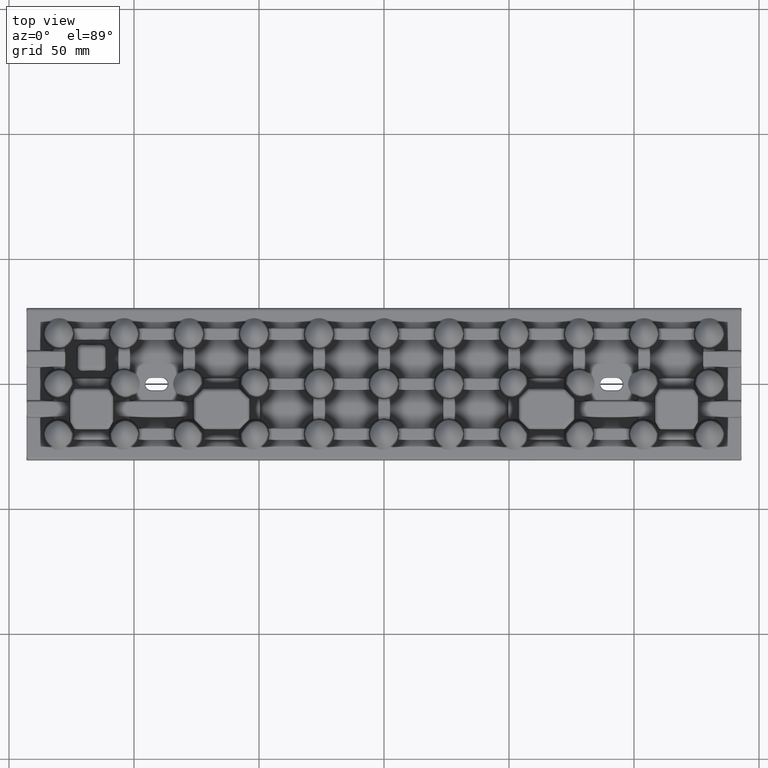
[diagram: clean part render]
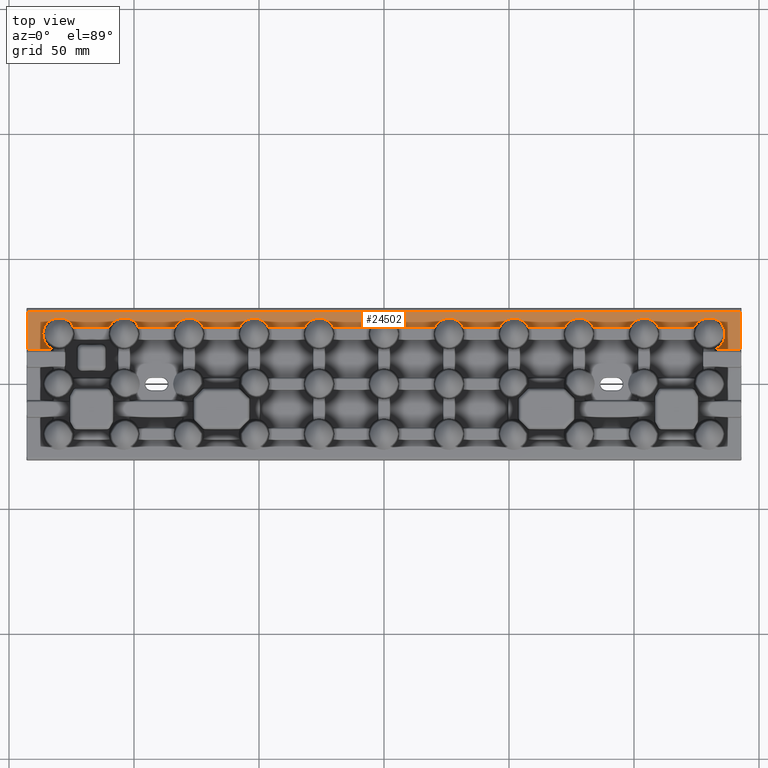
[diagram: same view with one face highlighted and labeled with its STEP entity id]
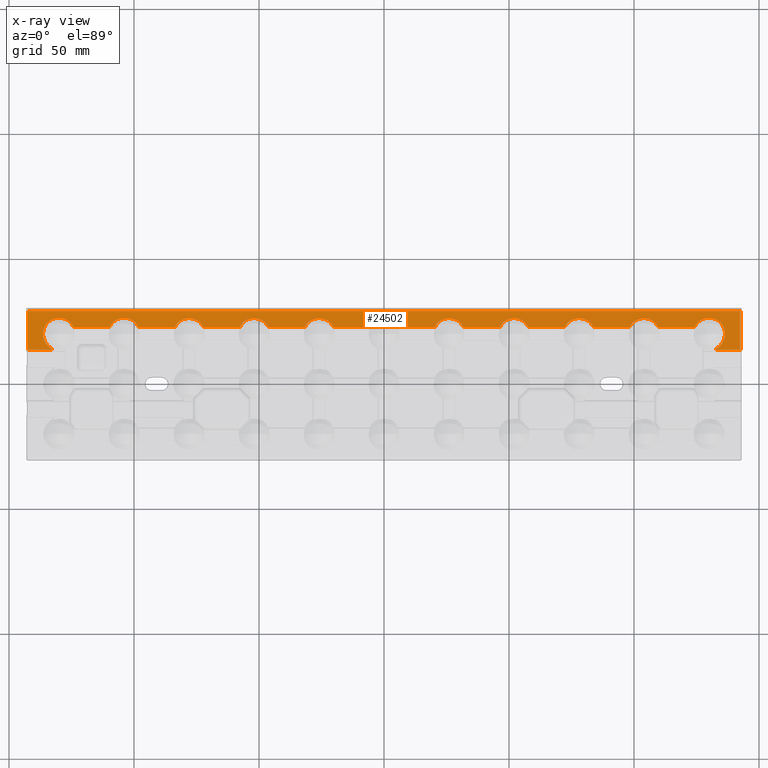
[diagram: x-ray of the same camera — body ghosted, the highlighted face saturated]
A machine part, top view. The second image highlights one B-rep face of the part: STEP entity #24502.
The next image is the same camera in x-ray: the body ghosted, the highlighted face saturated — about 0% of this face is hidden behind the body in this view.
In plain terms, the highlighted planar face has unit normal (-0, 0, 1).
Its self-contained STEP definition (entity closure, byte-faithful):
#887 = DIRECTION ( 'NONE',  ( -0.0000000000000000000, 1.000000000000000000, -0.0000000000000000000 ) ) ;
#1106 = CARTESIAN_POINT ( 'NONE',  ( 54.89580223656205500, 25.72966805994285300, 2.000000000000000400 ) ) ;
#1329 = CARTESIAN_POINT ( 'NONE',  ( 126.9370072906878300, 25.74524849004776400, 2.000000000000002700 ) ) ;
#1546 = CARTESIAN_POINT ( 'NONE',  ( -77.40202494203296600, 26.34292466919690800, 2.000000000000007500 ) ) ;
#1559 = CARTESIAN_POINT ( 'NONE',  ( 48.10937087448136400, 25.08791192409510300, 1.999999999999990500 ) ) ;
#1776 = CARTESIAN_POINT ( 'NONE',  ( 132.4560468600722300, 26.02111659440521400, 2.000000000000582200 ) ) ;
#2008 = CARTESIAN_POINT ( 'NONE',  ( -82.94023786564170600, 24.03016675287940600, 1.999999999999998700 ) ) ;
#2254 = CARTESIAN_POINT ( 'NONE',  ( 136.3571855220607500, 20.93196077515543500, 1.999999999999992200 ) ) ;
#2716 = ORIENTED_EDGE ( 'NONE', *, *, #77481, .T. ) ;
#2726 = CARTESIAN_POINT ( 'NONE',  ( 134.8038073728026200, 15.63519716726078500, 2.000000000000001800 ) ) ;
#2779 = CARTESIAN_POINT ( 'NONE',  ( -46.31408250283077200, 22.74142219370213900, 2.000000000000000000 ) ) ;
#3237 = CARTESIAN_POINT ( 'NONE',  ( -50.81249629584369400, 26.26920953247134300, 1.999999999999999100 ) ) ;
#3456 = CARTESIAN_POINT ( 'NONE',  ( -23.65318109744439600, 25.96090301202868400, 2.000000000000001300 ) ) ;
#3736 = CARTESIAN_POINT ( 'NONE',  ( -56.55612884159967300, 24.48408273836402300, 1.999999999999999100 ) ) ;
#3935 = CARTESIAN_POINT ( 'NONE',  ( -30.34308451482867500, 24.69897988287919300, 1.999999999999991300 ) ) ;
#4334 = CARTESIAN_POINT ( 'NONE',  ( 30.35088839336700400, 24.69138805408460500, 2.000000000000001300 ) ) ;
#4712 = DIRECTION ( 'NONE',  ( 1.000000000000000000, 0.0000000000000000000, 0.0000000000000000000 ) ) ;
#4767 = CARTESIAN_POINT ( 'NONE',  ( 23.11361756186815000, 25.70828810833424400, 2.000000000000020900 ) ) ;
#4971 = CARTESIAN_POINT ( 'NONE',  ( 83.68591749716920000, 22.74142219370215700, 2.000000000000000000 ) ) ;
#5161 = B_SPLINE_CURVE_WITH_KNOTS ( 'NONE', 3,
 ( #87103, #119175, #87551, #22966, #98347, #33831, #109207, #44656, #120072, #55461, #131050, #66271, #1546, #77156, #12493, #88008, #23425, #98822, #34284, #109654, #45115, #120561, #55919, #131491, #66748, #2008, #77600, #12962, #88488, #23883 ),
 .UNSPECIFIED., .F., .F.,
 ( 4, 2, 2, 2, 2, 2, 2, 2, 2, 2, 2, 2, 2, 2, 4 ),
 ( 0.01146105144502494200, 0.01234856672288493600, 0.01323608200074493000, 0.01412359727860492400, 0.01501111255646491900, 0.01678614311218490700, 0.01856117366790489500, 0.01944868894576486800, 0.02033620422362484100, 0.02122371950148481400, 0.02211123477934479100, 0.02299875005720476000, 0.02388626533506473700, 0.02477378061292470600, 0.02566129589078468300 ),
 .UNSPECIFIED. ) ;
#5215 = VECTOR ( 'NONE', #7709, 1000.000000000000000 ) ;
#5375 = ORIENTED_EDGE ( 'NONE', *, *, #87229, .F. ) ;
#5437 = CARTESIAN_POINT ( 'NONE',  ( 78.59797505796694800, 26.34292466919692500, 2.000000000000007500 ) ) ;
#5559 = CARTESIAN_POINT ( 'NONE',  ( 4.350888393367010400, 24.69138805408459800, 2.000000000000001300 ) ) ;
#5902 = VECTOR ( 'NONE', #136437, 1000.000000000000000 ) ;
#5919 = CARTESIAN_POINT ( 'NONE',  ( 73.05976213435825200, 24.03016675287936000, 1.999999999999999600 ) ) ;
#5976 = DIRECTION ( 'NONE',  ( 1.000000000000000000, -3.844641663027053000E-016, 0.0000000000000000000 ) ) ;
#6028 = CARTESIAN_POINT ( 'NONE',  ( -2.886382438131816800, 25.70828810833426600, 2.000000000000021800 ) ) ;
#6143 = CARTESIAN_POINT ( 'NONE',  ( -107.7316135890797700, 25.34129456702345700, 2.000000000000021300 ) ) ;
#6217 = CARTESIAN_POINT ( 'NONE',  ( -5.685918381136276300, 22.74142219370212500, 2.000000000000000000 ) ) ;
#6617 = CARTESIAN_POINT ( 'NONE',  ( -100.2648923355076700, 25.33864318734784100, 2.000000000000000000 ) ) ;
#7104 = CARTESIAN_POINT ( 'NONE',  ( 108.9442605898524200, 24.02494622371219900, 2.000000000000000400 ) ) ;
#7583 = CARTESIAN_POINT ( 'NONE',  ( 101.9486907499038800, 26.03961674755554500, 2.000000000000376100 ) ) ;
#7709 = DIRECTION ( 'NONE',  ( 0.0000000000000000000, -1.000000000000000000, 0.0000000000000000000 ) ) ;
#8099 = CARTESIAN_POINT ( 'NONE',  ( -134.9688220959078800, 15.83627662067565300, 2.000000000000036900 ) ) ;
#8363 = CARTESIAN_POINT ( 'NONE',  ( -8.743261924239526700E-015, 22.74142219370212500, 2.000000000000000000 ) ) ;
#8375 = B_SPLINE_CURVE_WITH_KNOTS ( 'NONE', 3,
 ( #2779, #56689, #24625, #99993, #35495, #110875, #46343, #121781, #57139, #132753, #67942, #3237, #78807, #14197, #89694, #25088, #100482, #35980, #111342, #46812, #122270, #57605, #133205, #68426, #3736, #79238, #14661, #90163, #25549, #100948 ),
 .UNSPECIFIED., .F., .F.,
 ( 4, 2, 2, 2, 2, 2, 2, 2, 2, 2, 2, 2, 2, 2, 4 ),
 ( 0.01146105144502511700, 0.01234856672288517500, 0.01323608200074523300, 0.01412359727860529200, 0.01501111255646535100, 0.01678614311218544500, 0.01856117366790553700, 0.01944868894576559600, 0.02033620422362565300, 0.02122371950148570900, 0.02211123477934576200, 0.02299875005720582200, 0.02388626533506587800, 0.02477378061292593400, 0.02566129589078599100 ),
 .UNSPECIFIED. ) ;
#8567 = CARTESIAN_POINT ( 'NONE',  ( -136.4004426060456600, 20.69303316226777800, 2.000000000000042200 ) ) ;
#8897 = VERTEX_POINT ( 'NONE', #18110 ) ;
#9045 = CARTESIAN_POINT ( 'NONE',  ( -133.5888221226770700, 25.43574078452050800, 1.999999999999996200 ) ) ;
#9277 = VECTOR ( 'NONE', #75955, 1000.000000000000000 ) ;
#9534 = CARTESIAN_POINT ( 'NONE',  ( -127.1614140553780000, 25.85630829189935300, 2.000000000000001800 ) ) ;
#9707 = CARTESIAN_POINT ( 'NONE',  ( 142.4984859507544300, 13.77131854326629700, 2.000000000000000000 ) ) ;
#10357 = ORIENTED_EDGE ( 'NONE', *, *, #88840, .T. ) ;
#10787 = VERTEX_POINT ( 'NONE', #48681 ) ;
#10975 = DIRECTION ( 'NONE',  ( -1.000000000000000000, 0.0000000000000000000, -0.0000000000000000000 ) ) ;
#11187 = CARTESIAN_POINT ( 'NONE',  ( -142.4984859507544300, 29.17765049216839300, 2.000000000000000000 ) ) ;
#11457 = EDGE_CURVE ( 'NONE', #135893, #94894, #5161, .T. ) ;
#12039 = CARTESIAN_POINT ( 'NONE',  ( 53.18750370415638400, 26.26920953247132600, 2.000000000000000400 ) ) ;
#12266 = CARTESIAN_POINT ( 'NONE',  ( 127.6433081856375200, 26.05903956711943800, 1.999999999999999600 ) ) ;
#12493 = CARTESIAN_POINT ( 'NONE',  ( -78.59921765466381800, 26.32369884161497000, 2.000000000000000400 ) ) ;
#12508 = CARTESIAN_POINT ( 'NONE',  ( 47.44387115840034100, 24.48408273836409400, 1.999999999999999100 ) ) ;
#12679 = EDGE_CURVE ( 'NONE', #59321, #71953, #62313, .T. ) ;
#12735 = CARTESIAN_POINT ( 'NONE',  ( 133.1564910287879100, 25.69533138555745900, 2.000000000000004400 ) ) ;
#12962 = CARTESIAN_POINT ( 'NONE',  ( -83.42663582402389000, 23.28237074835563900, 2.000000000000000000 ) ) ;
#13185 = CARTESIAN_POINT ( 'NONE',  ( 136.4543630076603900, 20.28945278893971200, 2.000000000000033800 ) ) ;
#13640 = CARTESIAN_POINT ( 'NONE',  ( 134.2632666899523600, 15.08384263854769900, 2.000000000000008900 ) ) ;
#14197 = CARTESIAN_POINT ( 'NONE',  ( -52.29989643202071600, 26.34284743751708600, 2.000000000000007500 ) ) ;
#14416 = CARTESIAN_POINT ( 'NONE',  ( -25.40202494203300500, 26.34292466919688600, 2.000000000000006700 ) ) ;
#14661 = CARTESIAN_POINT ( 'NONE',  ( -57.11388305340173600, 23.78948424218560100, 2.000000000000000000 ) ) ;
#14870 = CARTESIAN_POINT ( 'NONE',  ( -30.94023786564174800, 24.03016675287936700, 1.999999999999999600 ) ) ;
#15225 = CARTESIAN_POINT ( 'NONE',  ( 29.65900157376771400, 25.25750687982492000, 2.000000000000000900 ) ) ;
#15687 = CARTESIAN_POINT ( 'NONE',  ( 22.34826929203328700, 25.26228968515621500, 1.999999999999998700 ) ) ;
#16056 = EDGE_CURVE ( 'NONE', #89151, #10787, #21688, .T. ) ;
#16312 = CARTESIAN_POINT ( 'NONE',  ( -83.68591838113627500, 22.74142219370215300, 2.000000000000000000 ) ) ;
#16358 = CARTESIAN_POINT ( 'NONE',  ( 77.40078234533609700, 26.32369884161497000, 2.000000000000000900 ) ) ;
#16470 = CARTESIAN_POINT ( 'NONE',  ( 3.659001573767734600, 25.25750687982491600, 2.000000000000000400 ) ) ;
#16811 = CARTESIAN_POINT ( 'NONE',  ( 72.57336417597609600, 23.28237074835564600, 2.000000000000000000 ) ) ;
#16916 = CARTESIAN_POINT ( 'NONE',  ( -3.651730707966690700, 25.26228968515624000, 1.999999999999999100 ) ) ;
#17035 = CARTESIAN_POINT ( 'NONE',  ( -106.9451692743110000, 25.80729167703339000, 2.000000000000000400 ) ) ;
#17527 = CARTESIAN_POINT ( 'NONE',  ( -99.55769351884465800, 24.75262746778319600, 2.000000000000000000 ) ) ;
#18005 = CARTESIAN_POINT ( 'NONE',  ( 108.3508883933669200, 24.69138805408460200, 1.999999999999999100 ) ) ;
#18110 = CARTESIAN_POINT ( 'NONE',  ( 142.4984859507544300, 29.17765049216839300, 2.000000000000000000 ) ) ;
#18475 = CARTESIAN_POINT ( 'NONE',  ( 101.1136175618681200, 25.70828810833425100, 2.000000000000020400 ) ) ;
#18479 = CARTESIAN_POINT ( 'NONE',  ( 83.68591749716920000, 22.74142219370215700, 2.000000000000000000 ) ) ;
#18752 = LINE ( 'NONE', #138430, #76154 ) ;
#18766 = ORIENTED_EDGE ( 'NONE', *, *, #72944, .T. ) ;
#19022 = CARTESIAN_POINT ( 'NONE',  ( -135.4108736732432000, 16.47871832660653300, 2.000000000000005800 ) ) ;
#19500 = LINE ( 'NONE', #65140, #9277 ) ;
#19514 = CARTESIAN_POINT ( 'NONE',  ( -136.2434718376038600, 21.45292745694797200, 2.000000000000017800 ) ) ;
#19973 = CARTESIAN_POINT ( 'NONE',  ( -132.4447679283120500, 26.04204510480128200, 1.999999999999997800 ) ) ;
#20427 = ORIENTED_EDGE ( 'NONE', *, *, #114862, .T. ) ;
#20426 = CARTESIAN_POINT ( 'NONE',  ( -126.4852440884928200, 25.48385695646168300, 2.000000000000200700 ) ) ;
#20537 = DIRECTION ( 'NONE',  ( -0.0000000000000000000, 1.000000000000000000, -0.0000000000000000000 ) ) ;
#20816 = ORIENTED_EDGE ( 'NONE', *, *, #16056, .T. ) ;
#21688 = LINE ( 'NONE', #8363, #104308 ) ;
#21829 = CARTESIAN_POINT ( 'NONE',  ( 132.7414221937016500, 13.77131854326629700, 2.000000000000000000 ) ) ;
#21849 = LINE ( 'NONE', #60481, #47160 ) ;
#22100 = CARTESIAN_POINT ( 'NONE',  ( 124.1933031999768500, 22.74142219370217100, 2.000000000000000000 ) ) ;
#22249 = CARTESIAN_POINT ( 'NONE',  ( 124.4021928249320600, 23.21914348379841500, 2.000000000000000000 ) ) ;
#22500 = CARTESIAN_POINT ( 'NONE',  ( 57.68591749716920700, 22.74142219370214600, 2.000000000000000000 ) ) ;
#22966 = CARTESIAN_POINT ( 'NONE',  ( -72.87935984118216500, 23.77949261962840700, 1.999999999999999600 ) ) ;
#22978 = CARTESIAN_POINT ( 'NONE',  ( 51.70010356797940400, 26.34284743751707900, 2.000000000000007500 ) ) ;
#23188 = CARTESIAN_POINT ( 'NONE',  ( 128.3896361200185900, 26.28622938213729700, 1.999999999999998200 ) ) ;
#23425 = CARTESIAN_POINT ( 'NONE',  ( -79.47797127924188500, 26.19184143120081400, 2.000000000000376100 ) ) ;
#23438 = CARTESIAN_POINT ( 'NONE',  ( 46.88611694659826400, 23.78948424218561200, 2.000000000000000400 ) ) ;
#23654 = CARTESIAN_POINT ( 'NONE',  ( 133.8068336764966100, 25.28476824205488800, 2.000000000000020900 ) ) ;
#23883 = CARTESIAN_POINT ( 'NONE',  ( -83.68591838113627500, 22.74142219370215300, 2.000000000000000000 ) ) ;
#24104 = CARTESIAN_POINT ( 'NONE',  ( 136.4729777846312400, 19.90042531852348500, 1.999999999999703800 ) ) ;
#24502 = ADVANCED_FACE ( 'NONE', ( #122005 ), #134213, .T. ) ;
#24579 = CARTESIAN_POINT ( 'NONE',  ( 133.6524553784973400, 14.60666705602079300, 1.999999999999995300 ) ) ;
#24625 = CARTESIAN_POINT ( 'NONE',  ( -46.56883134949654100, 23.27401291800962100, 1.999999999999999100 ) ) ;
#24897 = CARTESIAN_POINT ( 'NONE',  ( -109.8066968000231500, 22.74142219370216400, 2.000000000000000000 ) ) ;
#25088 = CARTESIAN_POINT ( 'NONE',  ( -53.18745140174165400, 26.24813518024992100, 2.000000000000000400 ) ) ;
#25292 = CARTESIAN_POINT ( 'NONE',  ( -26.59921765466388500, 26.32369884161497700, 2.000000000000001300 ) ) ;
#25549 = CARTESIAN_POINT ( 'NONE',  ( -57.56605016654666700, 23.01410366585238500, 2.000000000000000900 ) ) ;
#25763 = CARTESIAN_POINT ( 'NONE',  ( -31.42663582402390400, 23.28237074835563900, 2.000000000000000000 ) ) ;
#26159 = CARTESIAN_POINT ( 'NONE',  ( 28.34681890255554000, 25.96090301202870200, 2.000000000000000900 ) ) ;
#26285 = VERTEX_POINT ( 'NONE', #68795 ) ;
#26605 = CARTESIAN_POINT ( 'NONE',  ( 21.65691548517130000, 24.69897988287915400, 1.999999999999993600 ) ) ;
#26814 = CARTESIAN_POINT ( 'NONE',  ( 83.12064015881782100, 23.77949261962847400, 2.000000000000000000 ) ) ;
#27271 = CARTESIAN_POINT ( 'NONE',  ( 76.52202872075803000, 26.19184143120079300, 2.000000000000375700 ) ) ;
#27314 = VECTOR ( 'NONE', #132351, 1000.000000000000000 ) ;
#27380 = CARTESIAN_POINT ( 'NONE',  ( 2.346818902555559000, 25.96090301202869500, 1.999999999999999100 ) ) ;
#27666 = VERTEX_POINT ( 'NONE', #48972 ) ;
#27754 = CARTESIAN_POINT ( 'NONE',  ( 72.31408161886368200, 22.74142219370215300, 2.000000000000000000 ) ) ;
#27871 = CARTESIAN_POINT ( 'NONE',  ( -4.343084514828690100, 24.69897988287916800, 1.999999999999990900 ) ) ;
#27983 = CARTESIAN_POINT ( 'NONE',  ( -106.0969765487140700, 26.15141125679752700, 2.000000000000000000 ) ) ;
#28296 = ORIENTED_EDGE ( 'NONE', *, *, #118821, .T. ) ;
#28439 = CARTESIAN_POINT ( 'NONE',  ( -98.95429981997179400, 24.06744369133214100, 2.000000000000001300 ) ) ;
#28679 = ORIENTED_EDGE ( 'NONE', *, *, #49258, .T. ) ;
#28801 = VECTOR ( 'NONE', #116615, 1000.000000000000000 ) ;
#28913 = CARTESIAN_POINT ( 'NONE',  ( 107.6590015737676700, 25.25750687982491300, 2.000000000000000400 ) ) ;
#29416 = CARTESIAN_POINT ( 'NONE',  ( 100.3482692920332700, 25.26228968515620500, 2.000000000000000900 ) ) ;
#29472 = CARTESIAN_POINT ( 'NONE',  ( -132.7414221937016500, 14.10473258521227200, 2.000000000000000000 ) ) ;
#29940 = CARTESIAN_POINT ( 'NONE',  ( -135.7697559860457700, 17.16447069306319100, 2.000000000000004900 ) ) ;
#30395 = CARTESIAN_POINT ( 'NONE',  ( -136.0249929829442700, 22.19399924972438100, 2.000000000000036000 ) ) ;
#30877 = CARTESIAN_POINT ( 'NONE',  ( -131.4521836096744500, 26.32197485690522900, 2.000000000000078600 ) ) ;
#30990 = VERTEX_POINT ( 'NONE', #118492 ) ;
#31141 = VERTEX_POINT ( 'NONE', #45815 ) ;
#31296 = CARTESIAN_POINT ( 'NONE',  ( 109.6859174971691900, 22.74142219370216400, 2.000000000000000000 ) ) ;
#31367 = CARTESIAN_POINT ( 'NONE',  ( -125.6527893596952100, 24.86311111040771100, 2.000000000000460500 ) ) ;
#32637 = ORIENTED_EDGE ( 'NONE', *, *, #60733, .F. ) ;
#33346 = CARTESIAN_POINT ( 'NONE',  ( 132.7414221937016500, 14.10473753803652600, 2.000000000000000000 ) ) ;
#33387 = CARTESIAN_POINT ( 'NONE',  ( 57.43116865050347300, 23.27401291800960000, 2.000000000000001300 ) ) ;
#33831 = CARTESIAN_POINT ( 'NONE',  ( -73.44053837269162000, 24.48059242809561600, 2.000000000000000900 ) ) ;
#33840 = CARTESIAN_POINT ( 'NONE',  ( 50.81254859825842400, 26.24813518024995300, 2.000000000000000900 ) ) ;
#34054 = CARTESIAN_POINT ( 'NONE',  ( 129.1509323202120100, 26.42373735802978300, 2.000000000000000900 ) ) ;
#34284 = CARTESIAN_POINT ( 'NONE',  ( -80.33635225359901700, 25.94252433403931200, 2.000000000000021300 ) ) ;
#34295 = CARTESIAN_POINT ( 'NONE',  ( 46.43394983345331900, 23.01410366585238900, 2.000000000000000900 ) ) ;
#34515 = CARTESIAN_POINT ( 'NONE',  ( 134.4053310532718200, 24.78494374836400700, 1.999999999999999600 ) ) ;
#34756 = LINE ( 'NONE', #39179, #5902 ) ;
#34889 = CARTESIAN_POINT ( 'NONE',  ( 8.743261924239526700E-015, 22.74142219370212100, 2.000000000000000000 ) ) ;
#34906 = EDGE_CURVE ( 'NONE', #100857, #71953, #68650, .T. ) ;
#34986 = CARTESIAN_POINT ( 'NONE',  ( 136.4135722274042500, 19.38431539455026400, 2.000000000000027500 ) ) ;
#35373 = B_SPLINE_CURVE_WITH_KNOTS ( 'NONE', 3,
 ( #29472, #40304, #126643, #61953, #137562, #72783, #8099, #83632, #19022, #94469, #29940, #105317, #40764, #116183, #51612, #127121, #62397, #138029, #73263, #8567, #84089, #19514, #94936, #30395, #105781, #41231, #116643, #52070, #127605, #62887, #138497, #73748, #9045, #84561, #19973, #95426, #30877, #106237, #41691, #117123, #52524, #128058, #63382, #138973, #74188, #9534, #85040, #20426, #95873, #31367, #106720, #42136, #117580, #52999, #128516, #63828 ),
 .UNSPECIFIED., .F., .F.,
 ( 4, 2, 2, 2, 2, 2, 2, 2, 2, 2, 2, 2, 2, 2, 2, 2, 2, 2, 2, 2, 2, 2, 2, 2, 2, 2, 2, 4 ),
 ( 0.0000000000000000000, 0.001548823434202548200, 0.002323235151303790600, 0.003097646868405032700, 0.003872058585506274400, 0.004646470302607516100, 0.006195293736810000300, 0.006969705453911233800, 0.007356911312461851400, 0.007744117171012467200, 0.008518528888113701500, 0.009292940605214936700, 0.01006735232231617000, 0.01084176403941740500, 0.01239058747361987200, 0.01316499919072114000, 0.01393941090782240500, 0.01548823434202494100, 0.01626264605912620600, 0.01703705777622747200, 0.01858588121043008500, 0.01936029292753134800, 0.02013470464463261400, 0.02090911636173388100, 0.02168352807883514700, 0.02323235151303774300, 0.02400676323013903000, 0.02478117494724031000 ),
 .UNSPECIFIED. ) ;
#35443 = CARTESIAN_POINT ( 'NONE',  ( 132.9792014148096700, 14.21186126636037300, 2.000000000000000000 ) ) ;
#35495 = CARTESIAN_POINT ( 'NONE',  ( -47.05573941014748800, 24.02494622371216700, 1.999999999999999100 ) ) ;
#35648 = B_SPLINE_CURVE_WITH_KNOTS ( 'NONE', 3,
 ( #97678, #22249, #44417, #119841, #55232, #130831, #66041, #1329, #76933, #12266, #87776, #23188, #98591, #34054, #109421, #44884, #120329, #55691, #131263, #66508, #1776, #77373, #12735, #88251, #23654, #99028, #34515, #109886, #45331, #120792, #56160, #131740, #66970, #2254, #77835, #13185, #88729, #24104, #99485, #34986, #110359, #45800, #121253, #56640, #132204, #67421, #2726, #78296, #13640, #89188, #24579, #99938, #35443, #110827 ),
 .UNSPECIFIED., .F., .F.,
 ( 4, 2, 2, 2, 2, 2, 2, 2, 2, 2, 2, 2, 2, 2, 2, 2, 2, 2, 2, 2, 2, 2, 2, 2, 2, 2, 4 ),
 ( 0.0000000000000000000, 0.001552172697723902000, 0.003104345395447779200, 0.003880431744309717800, 0.004656518093171655400, 0.005432604442033594400, 0.006208690790895533300, 0.006984777139757472300, 0.007760863488619410300, 0.009313036186343286500, 0.01008912253520518500, 0.01086520888406708500, 0.01164129523292898300, 0.01241738158179088100, 0.01396955427951468800, 0.01552172697723849300, 0.01629781332610039400, 0.01707389967496229800, 0.01746194284939324400, 0.01784998602382419800, 0.01862607237268609800, 0.02017824507040988700, 0.02173041776813367700, 0.02250650411699557000, 0.02328259046585746300, 0.02405867681471935600, 0.02483476316358124500 ),
 .UNSPECIFIED. ) ;
#35705 = CARTESIAN_POINT ( 'NONE',  ( -20.87935984118218300, 23.77949261962843900, 1.999999999999998700 ) ) ;
#35848 = LINE ( 'NONE', #70621, #93157 ) ;
#35980 = CARTESIAN_POINT ( 'NONE',  ( -54.05130925009611100, 26.03961674755555900, 2.000000000000377000 ) ) ;
#36104 = CARTESIAN_POINT ( 'NONE',  ( 31.68591749716920300, 22.74142219370213900, 2.000000000000000000 ) ) ;
#36190 = CARTESIAN_POINT ( 'NONE',  ( -27.47797127924193100, 26.19184143120079600, 2.000000000000376100 ) ) ;
#36671 = VECTOR ( 'NONE', #70847, 1000.000000000000000 ) ;
#36672 = CARTESIAN_POINT ( 'NONE',  ( -31.68591838113628300, 22.74142219370213500, 2.000000000000000000 ) ) ;
#36979 = CARTESIAN_POINT ( 'NONE',  ( 0.0000000000000000000, 0.0000000000000000000, 2.000000000000000000 ) ) ;
#37036 = CARTESIAN_POINT ( 'NONE',  ( 26.59797505796694100, 26.34292466919690400, 2.000000000000007100 ) ) ;
#37341 = DIRECTION ( 'NONE',  ( 1.000000000000000000, 3.844641663027053000E-016, 0.0000000000000000000 ) ) ;
#37491 = CARTESIAN_POINT ( 'NONE',  ( 21.05976213435824100, 24.03016675287935300, 1.999999999999998200 ) ) ;
#37688 = CARTESIAN_POINT ( 'NONE',  ( 82.55946162730830900, 24.48059242809564000, 2.000000000000000000 ) ) ;
#37915 = DIRECTION ( 'NONE',  ( 0.0000000000000000000, -1.000000000000000000, 0.0000000000000000000 ) ) ;
#38150 = CARTESIAN_POINT ( 'NONE',  ( 75.66364774640092600, 25.94252433403930200, 2.000000000000021800 ) ) ;
#38254 = CARTESIAN_POINT ( 'NONE',  ( 0.5979750579669768100, 26.34292466919692500, 2.000000000000007100 ) ) ;
#38687 = CARTESIAN_POINT ( 'NONE',  ( -4.940237865641752700, 24.03016675287935700, 1.999999999999998700 ) ) ;
#38809 = CARTESIAN_POINT ( 'NONE',  ( -104.6072660417372500, 26.47178343685202500, 2.000000000000000900 ) ) ;
#38810 = CARTESIAN_POINT ( 'NONE',  ( 109.6859174971691900, 22.74142219370216400, 2.000000000000000000 ) ) ;
#39179 = CARTESIAN_POINT ( 'NONE',  ( 8.743261924239526700E-015, 22.74142219370212100, 2.000000000000000000 ) ) ;
#39303 = CARTESIAN_POINT ( 'NONE',  ( -98.45831741843167600, 23.29783319247933800, 1.999999999999994400 ) ) ;
#39791 = CARTESIAN_POINT ( 'NONE',  ( 106.3468189025555400, 25.96090301202875100, 2.000000000000000900 ) ) ;
#40057 = VECTOR ( 'NONE', #89075, 1000.000000000000000 ) ;
#40250 = CARTESIAN_POINT ( 'NONE',  ( 99.65691548517132500, 24.69897988287919700, 1.999999999999991800 ) ) ;
#40304 = CARTESIAN_POINT ( 'NONE',  ( -133.2166998397115100, 14.31885291363815300, 1.999999999999999600 ) ) ;
#40448 = B_SPLINE_CURVE_WITH_KNOTS ( 'NONE', 3,
 ( #58981, #101387, #124117, #59423, #135048, #70230, #5559, #81078, #16470, #91999, #27380, #102769, #38254, #113645, #49060, #124551, #59889, #135513, #70679, #6028, #81539, #16916, #92437, #27871, #103225, #38687, #114104, #49546, #125016, #60343 ),
 .UNSPECIFIED., .F., .F.,
 ( 4, 2, 2, 2, 2, 2, 2, 2, 2, 2, 2, 2, 2, 2, 4 ),
 ( 0.01146105144502530100, 0.01234856672288539200, 0.01323608200074548300, 0.01412359727860557400, 0.01501111255646566500, 0.01678614311218584700, 0.01856117366790602900, 0.01944868894576611700, 0.02033620422362621100, 0.02122371950148629900, 0.02211123477934639300, 0.02299875005720648400, 0.02388626533506657500, 0.02477378061292666600, 0.02566129589078675700 ),
 .UNSPECIFIED. ) ;
#40555 = VECTOR ( 'NONE', #37915, 1000.000000000000000 ) ;
#40764 = CARTESIAN_POINT ( 'NONE',  ( -136.2119260959734100, 18.38208838616111500, 2.000000000000002700 ) ) ;
#41042 = DIRECTION ( 'NONE',  ( 1.000000000000000000, 3.844641663027053000E-016, 0.0000000000000000000 ) ) ;
#41231 = CARTESIAN_POINT ( 'NONE',  ( -135.7338052617929800, 22.91366961258105000, 1.999999999999979100 ) ) ;
#41306 = VERTEX_POINT ( 'NONE', #24897 ) ;
#41691 = CARTESIAN_POINT ( 'NONE',  ( -130.6838156246450600, 26.44214692921907800, 2.000000000000016000 ) ) ;
#42061 = VERTEX_POINT ( 'NONE', #113615 ) ;
#42136 = CARTESIAN_POINT ( 'NONE',  ( -124.8204203374863400, 23.87902872147321200, 2.000000000000045700 ) ) ;
#44202 = CARTESIAN_POINT ( 'NONE',  ( 56.94426058985251900, 24.02494622371211400, 2.000000000000000900 ) ) ;
#44417 = CARTESIAN_POINT ( 'NONE',  ( 124.6600129263038200, 23.66778529779086800, 1.999999999999997300 ) ) ;
#44656 = CARTESIAN_POINT ( 'NONE',  ( -74.09830723632775600, 25.07923844509858900, 2.000000000000000000 ) ) ;
#44672 = CARTESIAN_POINT ( 'NONE',  ( 49.94869074990398200, 26.03961674755559100, 2.000000000000375700 ) ) ;
#44884 = CARTESIAN_POINT ( 'NONE',  ( 129.9246267638659200, 26.47556243276046200, 2.000000000000000000 ) ) ;
#45115 = CARTESIAN_POINT ( 'NONE',  ( -81.14955846764443900, 25.57240025619217500, 1.999999999999999100 ) ) ;
#45331 = CARTESIAN_POINT ( 'NONE',  ( 135.2461656789481900, 23.80948439462801900, 1.999999999999989600 ) ) ;
#45601 = VECTOR ( 'NONE', #37341, 1000.000000000000000 ) ;
#45800 = CARTESIAN_POINT ( 'NONE',  ( 136.2080884590086200, 18.36787315923900400, 1.999999999999935400 ) ) ;
#45815 = CARTESIAN_POINT ( 'NONE',  ( 46.31408161886368900, 22.74142219370214200, 2.000000000000000000 ) ) ;
#46343 = CARTESIAN_POINT ( 'NONE',  ( -47.64911160663298500, 24.69138805408459800, 1.999999999999998700 ) ) ;
#46562 = CARTESIAN_POINT ( 'NONE',  ( -21.44053837269166600, 24.48059242809563000, 2.000000000000000400 ) ) ;
#46812 = CARTESIAN_POINT ( 'NONE',  ( -54.88638243813185400, 25.70828810833424400, 2.000000000000021800 ) ) ;
#46958 = ORIENTED_EDGE ( 'NONE', *, *, #83712, .T. ) ;
#47007 = CARTESIAN_POINT ( 'NONE',  ( -28.33635225359907700, 25.94252433403928400, 2.000000000000020900 ) ) ;
#47044 = VERTEX_POINT ( 'NONE', #22100 ) ;
#47160 = VECTOR ( 'NONE', #136130, 1000.000000000000000 ) ;
#47723 = CARTESIAN_POINT ( 'NONE',  ( -132.7414221937016500, 13.77131854326629700, 2.000000000000000000 ) ) ;
#47857 = CARTESIAN_POINT ( 'NONE',  ( 25.40078234533605800, 26.32369884161497000, 2.000000000000001300 ) ) ;
#48311 = CARTESIAN_POINT ( 'NONE',  ( 20.57336417597608500, 23.28237074835559600, 1.999999999999999600 ) ) ;
#48500 = CARTESIAN_POINT ( 'NONE',  ( 81.90169276367215900, 25.07923844509860300, 2.000000000000001800 ) ) ;
#48681 = CARTESIAN_POINT ( 'NONE',  ( 72.31408161886368200, 22.74142219370215300, 2.000000000000000000 ) ) ;
#48720 = CARTESIAN_POINT ( 'NONE',  ( -109.6834743107423400, 23.02322655119821700, 1.999999999999999600 ) ) ;
#48955 = CARTESIAN_POINT ( 'NONE',  ( 74.85044153235550400, 25.57240025619213200, 1.999999999999999600 ) ) ;
#48972 = CARTESIAN_POINT ( 'NONE',  ( -132.7414221937016500, 14.10473258521227200, 2.000000000000000000 ) ) ;
#49060 = CARTESIAN_POINT ( 'NONE',  ( -0.5992176546639054200, 26.32369884161497400, 2.000000000000001300 ) ) ;
#49182 = CARTESIAN_POINT ( 'NONE',  ( -109.2251801674121500, 23.81596862023934600, 2.000000000000013300 ) ) ;
#49258 = EDGE_CURVE ( 'NONE', #27666, #137267, #35373, .T. ) ;
#49303 = VERTEX_POINT ( 'NONE', #21829 ) ;
#49468 = VERTEX_POINT ( 'NONE', #101872 ) ;
#49546 = CARTESIAN_POINT ( 'NONE',  ( -5.426635824023913200, 23.28237074835562500, 2.000000000000000000 ) ) ;
#49671 = CARTESIAN_POINT ( 'NONE',  ( -102.7759188652682800, 26.39024300223947300, 2.000000000000044400 ) ) ;
#49722 = VECTOR ( 'NONE', #20537, 1000.000000000000000 ) ;
#50136 = CARTESIAN_POINT ( 'NONE',  ( -98.19330410578973600, 22.74142219370216000, 2.000000000000000000 ) ) ;
#50137 = CARTESIAN_POINT ( 'NONE',  ( 109.5670405776703800, 23.01184766495145300, 1.999999999999998700 ) ) ;
#50601 = CARTESIAN_POINT ( 'NONE',  ( 104.5979750579668900, 26.34292466919692200, 2.000000000000007100 ) ) ;
#51082 = CARTESIAN_POINT ( 'NONE',  ( 99.05976213435816600, 24.03016675287936000, 1.999999999999998200 ) ) ;
#51510 = EDGE_CURVE ( 'NONE', #42061, #85898, #130479, .T. ) ;
#51612 = CARTESIAN_POINT ( 'NONE',  ( -136.4164263115655400, 19.40126973644484900, 2.000000000000041700 ) ) ;
#52070 = CARTESIAN_POINT ( 'NONE',  ( -135.2386340161074000, 23.81969515531236000, 2.000000000000021300 ) ) ;
#52258 = DIRECTION ( 'NONE',  ( 1.000000000000000000, -0.0000000000000000000, 0.0000000000000000000 ) ) ;
#52524 = CARTESIAN_POINT ( 'NONE',  ( -129.3938329744585500, 26.46395190498709800, 1.999999999999993100 ) ) ;
#52999 = CARTESIAN_POINT ( 'NONE',  ( -124.4145874392488500, 23.21229651600332700, 2.000000000000003100 ) ) ;
#54351 = EDGE_CURVE ( 'NONE', #59321, #59610, #34756, .T. ) ;
#55031 = CARTESIAN_POINT ( 'NONE',  ( 56.35088839336702900, 24.69138805408455200, 1.999999999999998700 ) ) ;
#55232 = CARTESIAN_POINT ( 'NONE',  ( 125.6555024586220800, 24.86585635843068700, 2.000000000000022200 ) ) ;
#55461 = CARTESIAN_POINT ( 'NONE',  ( -75.10419776343795200, 25.72966805994284200, 1.999999999999998200 ) ) ;
#55475 = CARTESIAN_POINT ( 'NONE',  ( 49.11361756186823200, 25.70828810833429400, 2.000000000000021300 ) ) ;
#55691 = CARTESIAN_POINT ( 'NONE',  ( 130.9602056957945700, 26.42367829432579600, 2.000000000000126100 ) ) ;
#55693 = ORIENTED_EDGE ( 'NONE', *, *, #51510, .F. ) ;
#55909 = CARTESIAN_POINT ( 'NONE',  ( 98.31408161886368200, 22.74142219370216400, 2.000000000000000000 ) ) ;
#55919 = CARTESIAN_POINT ( 'NONE',  ( -81.89062912551864300, 25.08791192409512400, 1.999999999999991800 ) ) ;
#55976 = LINE ( 'NONE', #56771, #27314 ) ;
#56160 = CARTESIAN_POINT ( 'NONE',  ( 135.9541735478659100, 22.42434994805275700, 1.999999999999950900 ) ) ;
#56640 = CARTESIAN_POINT ( 'NONE',  ( 135.6677536563869400, 16.91885467242738600, 2.000000000000008000 ) ) ;
#56689 = CARTESIAN_POINT ( 'NONE',  ( -46.43295942232960300, 23.01184766495140000, 1.999999999999998200 ) ) ;
#56771 = CARTESIAN_POINT ( 'NONE',  ( 8.743261924239526700E-015, 22.74142219370212100, 2.000000000000000000 ) ) ;
#57139 = CARTESIAN_POINT ( 'NONE',  ( -48.34099842623227500, 25.25750687982492000, 2.000000000000000400 ) ) ;
#57342 = CARTESIAN_POINT ( 'NONE',  ( -22.09830723632781300, 25.07923844509860300, 2.000000000000000900 ) ) ;
#57454 = ORIENTED_EDGE ( 'NONE', *, *, #80956, .T. ) ;
#57605 = CARTESIAN_POINT ( 'NONE',  ( -55.65173070796669900, 25.26228968515619800, 1.999999999999999600 ) ) ;
#57818 = CARTESIAN_POINT ( 'NONE',  ( -29.14955846764445700, 25.57240025619214000, 1.999999999999999600 ) ) ;
#57925 = VERTEX_POINT ( 'NONE', #55909 ) ;
#58205 = CARTESIAN_POINT ( 'NONE',  ( 31.12064015881779600, 23.77949261962847800, 2.000000000000000900 ) ) ;
#58652 = CARTESIAN_POINT ( 'NONE',  ( 24.52202872075802300, 26.19184143120078900, 2.000000000000377500 ) ) ;
#58981 = CARTESIAN_POINT ( 'NONE',  ( 5.685917497169208800, 22.74142219370212800, 2.000000000000000000 ) ) ;
#59120 = CARTESIAN_POINT ( 'NONE',  ( 20.31408161886369600, 22.74142219370213200, 2.000000000000000000 ) ) ;
#59315 = CARTESIAN_POINT ( 'NONE',  ( 80.89580223656199100, 25.72966805994286700, 2.000000000000001300 ) ) ;
#59321 = VERTEX_POINT ( 'NONE', #73794 ) ;
#59423 = CARTESIAN_POINT ( 'NONE',  ( 5.120640158817808500, 23.77949261962846700, 2.000000000000000000 ) ) ;
#59544 = CARTESIAN_POINT ( 'NONE',  ( -109.8066968000231500, 22.74142219370216400, 2.000000000000000000 ) ) ;
#59610 = VERTEX_POINT ( 'NONE', #6217 ) ;
#59637 = EDGE_LOOP ( 'NONE', ( #122224, #81116, #79492, #69217, #28296, #20427, #18766, #10357, #2716, #28679, #72241, #57454, #135562, #122885, #120257, #113476, #104259, #90918, #89419, #82326, #69455, #55693, #46958, #32637, #20816, #5375, #139657, #134858 ) ) ;
#59782 = CARTESIAN_POINT ( 'NONE',  ( 74.10937087448130000, 25.08791192409507800, 1.999999999999990900 ) ) ;
#59889 = CARTESIAN_POINT ( 'NONE',  ( -1.477971279241941300, 26.19184143120080000, 2.000000000000376600 ) ) ;
#60007 = CARTESIAN_POINT ( 'NONE',  ( -108.6528043776966800, 24.53727192830667300, 2.000000000000007500 ) ) ;
#60057 = CARTESIAN_POINT ( 'NONE',  ( -8.743261924239526700E-015, 22.74142219370212100, 2.000000000000000000 ) ) ;
#60343 = CARTESIAN_POINT ( 'NONE',  ( -5.685918381136276300, 22.74142219370212500, 2.000000000000000000 ) ) ;
#60464 = CARTESIAN_POINT ( 'NONE',  ( -101.6027130944250000, 26.04602442036630800, 2.000000000000489400 ) ) ;
#60481 = CARTESIAN_POINT ( 'NONE',  ( 0.0000000000000000000, 13.77131854326629700, 2.000000000000000000 ) ) ;
#60733 = EDGE_CURVE ( 'NONE', #89151, #31141, #65352, .T. ) ;
#61423 = CARTESIAN_POINT ( 'NONE',  ( 103.4007823453360100, 26.32369884161497000, 1.999999999999999600 ) ) ;
#61556 = CARTESIAN_POINT ( 'NONE',  ( -142.4984859507544300, 0.0000000000000000000, 2.000000000000000000 ) ) ;
#61900 = CARTESIAN_POINT ( 'NONE',  ( 98.57336417597606700, 23.28237074835565700, 2.000000000000000900 ) ) ;
#61953 = CARTESIAN_POINT ( 'NONE',  ( -134.2613942620433500, 15.08201433151467300, 2.000000000000002700 ) ) ;
#62313 = B_SPLINE_CURVE_WITH_KNOTS ( 'NONE', 3,
 ( #132485, #89436, #100209, #35705, #111074, #46562, #121999, #57342, #132954, #68156, #3456, #78987, #14416, #89905, #25292, #100689, #36190, #111556, #47007, #122492, #57818, #133417, #68626, #3935, #79448, #14870, #90385, #25763, #101159, #36672 ),
 .UNSPECIFIED., .F., .F.,
 ( 4, 2, 2, 2, 2, 2, 2, 2, 2, 2, 2, 2, 2, 2, 4 ),
 ( 0.01146105144502515900, 0.01234856672288523300, 0.01323608200074530500, 0.01412359727860537800, 0.01501111255646545000, 0.01678614311218558400, 0.01856117366790571400, 0.01944868894576578000, 0.02033620422362584700, 0.02122371950148591400, 0.02211123477934598100, 0.02299875005720604700, 0.02388626533506611400, 0.02477378061292618100, 0.02566129589078625100 ),
 .UNSPECIFIED. ) ;
#62397 = CARTESIAN_POINT ( 'NONE',  ( -136.4738106320994900, 19.91821132039710200, 1.999999999999911600 ) ) ;
#62733 = LINE ( 'NONE', #61556, #5215 ) ;
#62887 = CARTESIAN_POINT ( 'NONE',  ( -134.3981355855900700, 24.79182235234154100, 2.000000000000001300 ) ) ;
#63382 = CARTESIAN_POINT ( 'NONE',  ( -128.3731083490079900, 26.28217517330754300, 2.000000000000223800 ) ) ;
#63828 = CARTESIAN_POINT ( 'NONE',  ( -124.1933041057897500, 22.74142219370217100, 2.000000000000000000 ) ) ;
#65140 = CARTESIAN_POINT ( 'NONE',  ( -8.743261924239526700E-015, 22.74142219370212500, 2.000000000000000000 ) ) ;
#65352 = B_SPLINE_CURVE_WITH_KNOTS ( 'NONE', 3,
 ( #22500, #87112, #33387, #108769, #44202, #119627, #55031, #130600, #65832, #1106, #76715, #12039, #87562, #22978, #98358, #33840, #109218, #44672, #120088, #55475, #131060, #66285, #1559, #77167, #12508, #88024, #23438, #98830, #34295, #109667 ),
 .UNSPECIFIED., .F., .F.,
 ( 4, 2, 2, 2, 2, 2, 2, 2, 2, 2, 2, 2, 2, 2, 4 ),
 ( 0.01146105144502519200, 0.01234856672288522200, 0.01323608200074525100, 0.01412359727860527900, 0.01501111255646531000, 0.01678614311218536200, 0.01856117366790541500, 0.01944868894576545400, 0.02033620422362549000, 0.02122371950148552900, 0.02211123477934556800, 0.02299875005720560300, 0.02388626533506563900, 0.02477378061292567800, 0.02566129589078571300 ),
 .UNSPECIFIED. ) ;
#65832 = CARTESIAN_POINT ( 'NONE',  ( 55.65900157376783100, 25.25750687982485900, 2.000000000000000400 ) ) ;
#66041 = CARTESIAN_POINT ( 'NONE',  ( 126.4901320553972000, 25.48698845338087800, 2.000000000000002700 ) ) ;
#66271 = CARTESIAN_POINT ( 'NONE',  ( -76.81249629584360200, 26.26920953247130100, 2.000000000000000000 ) ) ;
#66285 = CARTESIAN_POINT ( 'NONE',  ( 48.34826929203334300, 25.26228968515625800, 2.000000000000000900 ) ) ;
#66508 = CARTESIAN_POINT ( 'NONE',  ( 132.2099194455184400, 26.11154088710760500, 1.999999999999997100 ) ) ;
#66748 = CARTESIAN_POINT ( 'NONE',  ( -82.55612884159961600, 24.48408273836408400, 1.999999999999998700 ) ) ;
#66970 = CARTESIAN_POINT ( 'NONE',  ( 136.2471820597307300, 21.43794783272228000, 1.999999999999991800 ) ) ;
#67421 = CARTESIAN_POINT ( 'NONE',  ( 134.9695814219715300, 15.83726401227699300, 2.000000000000004000 ) ) ;
#67460 = LINE ( 'NONE', #101860, #45601 ) ;
#67942 = CARTESIAN_POINT ( 'NONE',  ( -49.65318109744444500, 25.96090301202870500, 1.999999999999999600 ) ) ;
#68156 = CARTESIAN_POINT ( 'NONE',  ( -23.10419776343797700, 25.72966805994286000, 2.000000000000000000 ) ) ;
#68426 = CARTESIAN_POINT ( 'NONE',  ( -56.34308451482873900, 24.69897988287915800, 1.999999999999992700 ) ) ;
#68626 = CARTESIAN_POINT ( 'NONE',  ( -29.89062912551866400, 25.08791192409509200, 1.999999999999990000 ) ) ;
#68650 = LINE ( 'NONE', #34889, #40057 ) ;
#68795 = CARTESIAN_POINT ( 'NONE',  ( -142.4984859507544300, 13.77131854326629700, 2.000000000000000000 ) ) ;
#68983 = CARTESIAN_POINT ( 'NONE',  ( 30.55946162730833400, 24.48059242809565100, 2.000000000000000400 ) ) ;
#69217 = ORIENTED_EDGE ( 'NONE', *, *, #91133, .T. ) ;
#69393 = DIRECTION ( 'NONE',  ( -0.0000000000000000000, 0.0000000000000000000, 1.000000000000000000 ) ) ;
#69455 = ORIENTED_EDGE ( 'NONE', *, *, #74424, .T. ) ;
#69458 = CARTESIAN_POINT ( 'NONE',  ( 23.66364774640084400, 25.94252433403927300, 2.000000000000021800 ) ) ;
#70047 = EDGE_CURVE ( 'NONE', #136481, #57925, #138653, .T. ) ;
#70130 = CARTESIAN_POINT ( 'NONE',  ( 79.18750370415632700, 26.26920953247131200, 2.000000000000000900 ) ) ;
#70230 = CARTESIAN_POINT ( 'NONE',  ( 4.559461627308322400, 24.48059242809563700, 1.999999999999999600 ) ) ;
#70566 = CARTESIAN_POINT ( 'NONE',  ( 73.44387115840028500, 24.48408273836406200, 2.000000000000000000 ) ) ;
#70621 = CARTESIAN_POINT ( 'NONE',  ( 8.743261924239526700E-015, 22.74142219370212100, 2.000000000000000000 ) ) ;
#70679 = CARTESIAN_POINT ( 'NONE',  ( -2.336352253599105500, 25.94252433403928400, 2.000000000000021800 ) ) ;
#70801 = CARTESIAN_POINT ( 'NONE',  ( -107.9799774282880400, 25.15661928670735700, 2.000000000000005300 ) ) ;
#70847 = DIRECTION ( 'NONE',  ( 1.000000000000000000, 3.844641663027053000E-016, 0.0000000000000000000 ) ) ;
#71278 = CARTESIAN_POINT ( 'NONE',  ( -100.7767586181579800, 25.66095788053585700, 2.000000000000000900 ) ) ;
#71782 = CARTESIAN_POINT ( 'NONE',  ( 109.1206401588177900, 23.77949261962849500, 2.000000000000000400 ) ) ;
#71953 = VERTEX_POINT ( 'NONE', #94404 ) ;
#72241 = ORIENTED_EDGE ( 'NONE', *, *, #72351, .T. ) ;
#72257 = CARTESIAN_POINT ( 'NONE',  ( 102.5220287207579900, 26.19184143120077800, 2.000000000000376100 ) ) ;
#72351 = EDGE_CURVE ( 'NONE', #137267, #41306, #35848, .T. ) ;
#72728 = CARTESIAN_POINT ( 'NONE',  ( 98.31408161886368200, 22.74142219370216400, 2.000000000000000000 ) ) ;
#72783 = CARTESIAN_POINT ( 'NONE',  ( -134.8049864351991400, 15.63652868622809500, 2.000000000000426800 ) ) ;
#72944 = EDGE_CURVE ( 'NONE', #100428, #26285, #62733, .T. ) ;
#73263 = CARTESIAN_POINT ( 'NONE',  ( -136.4523238488896800, 20.30728122568499900, 2.000000000000042600 ) ) ;
#73684 = DIRECTION ( 'NONE',  ( 1.000000000000000000, -3.844641663027053000E-016, 0.0000000000000000000 ) ) ;
#73748 = CARTESIAN_POINT ( 'NONE',  ( -133.8001273542166100, 25.28960625901853700, 1.999999999999998200 ) ) ;
#73794 = CARTESIAN_POINT ( 'NONE',  ( -20.31408250283076800, 22.74142219370212800, 2.000000000000000000 ) ) ;
#74188 = CARTESIAN_POINT ( 'NONE',  ( -127.6336155778975200, 26.05534636817994700, 2.000000000000001800 ) ) ;
#74424 = EDGE_CURVE ( 'NONE', #30990, #85898, #114794, .T. ) ;
#74628 = EDGE_CURVE ( 'NONE', #47044, #136163, #35648, .T. ) ;
#75955 = DIRECTION ( 'NONE',  ( 1.000000000000000000, 3.844641663027053000E-016, 0.0000000000000000000 ) ) ;
#76154 = VECTOR ( 'NONE', #73684, 1000.000000000000000 ) ;
#76715 = CARTESIAN_POINT ( 'NONE',  ( 54.34681890255571100, 25.96090301202866600, 2.000000000000000000 ) ) ;
#76933 = CARTESIAN_POINT ( 'NONE',  ( 127.1677788966149900, 25.85937980293672600, 2.000000000000000900 ) ) ;
#77156 = CARTESIAN_POINT ( 'NONE',  ( -78.29989643202058900, 26.34284743751708600, 2.000000000000007100 ) ) ;
#77167 = CARTESIAN_POINT ( 'NONE',  ( 47.65691548517137500, 24.69897988287922500, 1.999999999999991300 ) ) ;
#77373 = CARTESIAN_POINT ( 'NONE',  ( 132.9284831369577700, 25.81318828644190700, 2.000000000000582200 ) ) ;
#77481 = EDGE_CURVE ( 'NONE', #112320, #27666, #85767, .T. ) ;
#77600 = CARTESIAN_POINT ( 'NONE',  ( -83.11388305340175000, 23.78948424218561900, 2.000000000000000400 ) ) ;
#77835 = CARTESIAN_POINT ( 'NONE',  ( 136.4034225328698000, 20.67570466698195000, 2.000000000000033300 ) ) ;
#78296 = CARTESIAN_POINT ( 'NONE',  ( 134.4511374618152800, 15.25932425400857500, 2.000000000000000900 ) ) ;
#78344 = LINE ( 'NONE', #117233, #49722 ) ;
#78753 = CARTESIAN_POINT ( 'NONE',  ( 57.68591749716920700, 22.74142219370214600, 2.000000000000000000 ) ) ;
#78807 = CARTESIAN_POINT ( 'NONE',  ( -51.40202494203303000, 26.34292466919690400, 2.000000000000007500 ) ) ;
#78886 = CARTESIAN_POINT ( 'NONE',  ( -124.1933041057897500, 22.74142219370217100, 2.000000000000000000 ) ) ;
#78987 = CARTESIAN_POINT ( 'NONE',  ( -24.81249629584366500, 26.26920953247133600, 2.000000000000001300 ) ) ;
#79238 = CARTESIAN_POINT ( 'NONE',  ( -56.94023786564171300, 24.03016675287935300, 1.999999999999998700 ) ) ;
#79360 = CARTESIAN_POINT ( 'NONE',  ( 31.56704057767043600, 23.01184766495142100, 2.000000000000000400 ) ) ;
#79448 = CARTESIAN_POINT ( 'NONE',  ( -30.55612884159965100, 24.48408273836404100, 1.999999999999998700 ) ) ;
#79492 = ORIENTED_EDGE ( 'NONE', *, *, #87800, .T. ) ;
#79834 = CARTESIAN_POINT ( 'NONE',  ( 29.90169276367216300, 25.07923844509863200, 2.000000000000001300 ) ) ;
#80320 = CARTESIAN_POINT ( 'NONE',  ( 22.85044153235548900, 25.57240025619212500, 1.999999999999998700 ) ) ;
#80956 = EDGE_CURVE ( 'NONE', #41306, #121891, #130599, .T. ) ;
#80965 = CARTESIAN_POINT ( 'NONE',  ( 77.70010356797932600, 26.34284743751708300, 2.000000000000007100 ) ) ;
#81078 = CARTESIAN_POINT ( 'NONE',  ( 3.901692763672170500, 25.07923844509862100, 2.000000000000000900 ) ) ;
#81116 = ORIENTED_EDGE ( 'NONE', *, *, #74628, .T. ) ;
#81426 = CARTESIAN_POINT ( 'NONE',  ( 72.88611694659823600, 23.78948424218560500, 1.999999999999999600 ) ) ;
#81539 = CARTESIAN_POINT ( 'NONE',  ( -3.149558467644464800, 25.57240025619214000, 1.999999999999999100 ) ) ;
#81667 = CARTESIAN_POINT ( 'NONE',  ( -107.2142618718683600, 25.66616145673116000, 2.000000000000021800 ) ) ;
#82094 = VECTOR ( 'NONE', #10975, 1000.000000000000000 ) ;
#82133 = CARTESIAN_POINT ( 'NONE',  ( -100.0208248008698900, 25.15740777509519400, 2.000000000000000400 ) ) ;
#82326 = ORIENTED_EDGE ( 'NONE', *, *, #97302, .F. ) ;
#82597 = CARTESIAN_POINT ( 'NONE',  ( 108.5594616273082200, 24.48059242809566900, 2.000000000000000900 ) ) ;
#83089 = CARTESIAN_POINT ( 'NONE',  ( 101.6636477464008700, 25.94252433403927700, 2.000000000000021300 ) ) ;
#83632 = CARTESIAN_POINT ( 'NONE',  ( -135.2720012179278800, 16.25750110357200700, 2.000000000000036000 ) ) ;
#83712 = EDGE_CURVE ( 'NONE', #42061, #31141, #19500, .T. ) ;
#84089 = CARTESIAN_POINT ( 'NONE',  ( -136.3540053910362500, 20.94854251788319400, 2.000000000000017800 ) ) ;
#84561 = CARTESIAN_POINT ( 'NONE',  ( -132.9276890317121600, 25.83204835192331600, 1.999999999999996200 ) ) ;
#85040 = CARTESIAN_POINT ( 'NONE',  ( -126.9315720886831400, 25.74239599508432300, 2.000000000000199800 ) ) ;
#85767 = LINE ( 'NONE', #86878, #111015 ) ;
#85898 = VERTEX_POINT ( 'NONE', #88006 ) ;
#86878 = CARTESIAN_POINT ( 'NONE',  ( -132.7414221937016500, 0.0000000000000000000, 2.000000000000000000 ) ) ;
#87103 = CARTESIAN_POINT ( 'NONE',  ( -72.31408250283078600, 22.74142219370214900, 2.000000000000000000 ) ) ;
#87112 = CARTESIAN_POINT ( 'NONE',  ( 57.56704057767044000, 23.01184766495142500, 2.000000000000000000 ) ) ;
#87229 = EDGE_CURVE ( 'NONE', #137434, #10787, #128205, .T. ) ;
#87551 = CARTESIAN_POINT ( 'NONE',  ( -72.56883134949653400, 23.27401291800961000, 2.000000000000000000 ) ) ;
#87562 = CARTESIAN_POINT ( 'NONE',  ( 52.59797505796705500, 26.34292466919690100, 2.000000000000007500 ) ) ;
#87776 = CARTESIAN_POINT ( 'NONE',  ( 127.8892983006519900, 26.14484749682816700, 1.999999999999998200 ) ) ;
#87800 = EDGE_CURVE ( 'NONE', #136163, #49303, #126666, .T. ) ;
#88006 = CARTESIAN_POINT ( 'NONE',  ( 20.31408161886369600, 22.74142219370213200, 2.000000000000000000 ) ) ;
#88008 = CARTESIAN_POINT ( 'NONE',  ( -79.18745140174161200, 26.24813518024995000, 2.000000000000001300 ) ) ;
#88024 = CARTESIAN_POINT ( 'NONE',  ( 47.05976213435826600, 24.03016675287937100, 1.999999999999999100 ) ) ;
#88251 = CARTESIAN_POINT ( 'NONE',  ( 133.5956900890645900, 25.43116161982753500, 2.000000000000004000 ) ) ;
#88488 = CARTESIAN_POINT ( 'NONE',  ( -83.56605016654663100, 23.01410366585240300, 1.999999999999998700 ) ) ;
#88729 = CARTESIAN_POINT ( 'NONE',  ( 136.4687946289223200, 20.15979396082348200, 1.999999999999703800 ) ) ;
#88840 = EDGE_CURVE ( 'NONE', #26285, #112320, #21849, .T. ) ;
#89075 = DIRECTION ( 'NONE',  ( 1.000000000000000000, -3.844641663027053000E-016, 0.0000000000000000000 ) ) ;
#89151 = VERTEX_POINT ( 'NONE', #78753 ) ;
#89188 = CARTESIAN_POINT ( 'NONE',  ( 133.8644634404385600, 14.75777837215488700, 2.000000000000008900 ) ) ;
#89419 = ORIENTED_EDGE ( 'NONE', *, *, #54351, .T. ) ;
#89436 = CARTESIAN_POINT ( 'NONE',  ( -20.43295942232957800, 23.01184766495139300, 1.999999999999998200 ) ) ;
#89694 = CARTESIAN_POINT ( 'NONE',  ( -52.59921765466393100, 26.32369884161497000, 2.000000000000000900 ) ) ;
#89905 = CARTESIAN_POINT ( 'NONE',  ( -26.29989643202067400, 26.34284743751707900, 2.000000000000007100 ) ) ;
#90009 = CARTESIAN_POINT ( 'NONE',  ( -72.31408250283078600, 22.74142219370214900, 2.000000000000000000 ) ) ;
#90163 = CARTESIAN_POINT ( 'NONE',  ( -57.42663582402389000, 23.28237074835562100, 2.000000000000000400 ) ) ;
#90385 = CARTESIAN_POINT ( 'NONE',  ( -31.11388305340174300, 23.78948424218562300, 2.000000000000000400 ) ) ;
#90756 = CARTESIAN_POINT ( 'NONE',  ( 28.89580223656199800, 25.72966805994287800, 2.000000000000001300 ) ) ;
#90918 = ORIENTED_EDGE ( 'NONE', *, *, #12679, .F. ) ;
#91133 = EDGE_CURVE ( 'NONE', #49303, #132074, #139895, .T. ) ;
#91202 = CARTESIAN_POINT ( 'NONE',  ( 22.10937087448131100, 25.08791192409507800, 1.999999999999993600 ) ) ;
#91406 = CARTESIAN_POINT ( 'NONE',  ( 83.43116865050342300, 23.27401291800963200, 2.000000000000000000 ) ) ;
#91890 = CARTESIAN_POINT ( 'NONE',  ( 76.81254859825837400, 26.24813518024993500, 2.000000000000001300 ) ) ;
#91999 = CARTESIAN_POINT ( 'NONE',  ( 2.895802236562010600, 25.72966805994286300, 1.999999999999999600 ) ) ;
#92330 = CARTESIAN_POINT ( 'NONE',  ( 72.43394983345331200, 23.01410366585237800, 2.000000000000000000 ) ) ;
#92437 = CARTESIAN_POINT ( 'NONE',  ( -3.890629125518666200, 25.08791192409508100, 1.999999999999990900 ) ) ;
#92553 = CARTESIAN_POINT ( 'NONE',  ( -106.3875006696479300, 26.04970668707042900, 2.000000000000000400 ) ) ;
#92943 = EDGE_CURVE ( 'NONE', #136481, #47044, #93973, .T. ) ;
#93013 = CARTESIAN_POINT ( 'NONE',  ( -99.34391646682152600, 24.53350579193436700, 2.000000000000001300 ) ) ;
#93157 = VECTOR ( 'NONE', #5976, 1000.000000000000000 ) ;
#93483 = CARTESIAN_POINT ( 'NONE',  ( 107.9016927636721200, 25.07923844509867100, 1.999999999999998700 ) ) ;
#93961 = CARTESIAN_POINT ( 'NONE',  ( 100.8504415323554200, 25.57240025619210400, 2.000000000000000400 ) ) ;
#93973 = LINE ( 'NONE', #60057, #36671 ) ;
#94404 = CARTESIAN_POINT ( 'NONE',  ( -31.68591838113628300, 22.74142219370213500, 2.000000000000000000 ) ) ;
#94469 = CARTESIAN_POINT ( 'NONE',  ( -135.6592631508740400, 16.93159435012828200, 2.000000000000005300 ) ) ;
#94894 = VERTEX_POINT ( 'NONE', #16312 ) ;
#94936 = CARTESIAN_POINT ( 'NONE',  ( -136.1783317821686700, 21.70221378459184400, 2.000000000000037300 ) ) ;
#95426 = CARTESIAN_POINT ( 'NONE',  ( -131.7031195891367200, 26.26317489567744800, 1.999999999999997100 ) ) ;
#95825 = EDGE_CURVE ( 'NONE', #100857, #49468, #8375, .T. ) ;
#95873 = CARTESIAN_POINT ( 'NONE',  ( -126.2672173056508600, 25.33777689072299200, 2.000000000000460500 ) ) ;
#97302 = EDGE_CURVE ( 'NONE', #30990, #59610, #40448, .T. ) ;
#97678 = CARTESIAN_POINT ( 'NONE',  ( 124.1933031999768500, 22.74142219370217100, 2.000000000000000000 ) ) ;
#98347 = CARTESIAN_POINT ( 'NONE',  ( -73.05573941014748100, 24.02494622371210700, 2.000000000000001300 ) ) ;
#98358 = CARTESIAN_POINT ( 'NONE',  ( 51.40078234533617500, 26.32369884161498100, 2.000000000000000400 ) ) ;
#98591 = CARTESIAN_POINT ( 'NONE',  ( 128.6420349491404500, 26.34150959604975700, 2.000000000000000400 ) ) ;
#98822 = CARTESIAN_POINT ( 'NONE',  ( -80.05130925009604000, 26.03961674755557700, 2.000000000000376100 ) ) ;
#98830 = CARTESIAN_POINT ( 'NONE',  ( 46.57336417597611000, 23.28237074835562800, 2.000000000000000400 ) ) ;
#99028 = CARTESIAN_POINT ( 'NONE',  ( 134.2114182975665200, 24.96202658856205000, 2.000000000000021300 ) ) ;
#99485 = CARTESIAN_POINT ( 'NONE',  ( 136.4607763250618000, 19.77091025061651300, 2.000000000000028000 ) ) ;
#99938 = CARTESIAN_POINT ( 'NONE',  ( 133.2090957260856800, 14.33343039872045400, 1.999999999999995300 ) ) ;
#99993 = CARTESIAN_POINT ( 'NONE',  ( -46.87935984118217200, 23.77949261962846000, 1.999999999999999100 ) ) ;
#100209 = CARTESIAN_POINT ( 'NONE',  ( -20.56883134949652400, 23.27401291800960300, 1.999999999999998700 ) ) ;
#100428 = VERTEX_POINT ( 'NONE', #11187 ) ;
#100482 = CARTESIAN_POINT ( 'NONE',  ( -53.47797127924197000, 26.19184143120079300, 2.000000000000376100 ) ) ;
#100689 = CARTESIAN_POINT ( 'NONE',  ( -27.18745140174161200, 26.24813518024994300, 2.000000000000001800 ) ) ;
#100857 = VERTEX_POINT ( 'NONE', #130961 ) ;
#100948 = CARTESIAN_POINT ( 'NONE',  ( -57.68591838113626800, 22.74142219370214200, 2.000000000000000000 ) ) ;
#101159 = CARTESIAN_POINT ( 'NONE',  ( -31.56605016654663500, 23.01410366585237800, 2.000000000000000000 ) ) ;
#101387 = CARTESIAN_POINT ( 'NONE',  ( 5.567040577670426600, 23.01184766495140700, 1.999999999999999100 ) ) ;
#101537 = CARTESIAN_POINT ( 'NONE',  ( 27.18750370415631000, 26.26920953247133600, 2.000000000000000900 ) ) ;
#101741 = CARTESIAN_POINT ( 'NONE',  ( 83.56704057767046800, 23.01184766495145700, 1.999999999999998700 ) ) ;
#101860 = CARTESIAN_POINT ( 'NONE',  ( -8.743261924239526700E-015, 22.74142219370212500, 2.000000000000000000 ) ) ;
#101872 = CARTESIAN_POINT ( 'NONE',  ( -57.68591838113626800, 22.74142219370214200, 2.000000000000000000 ) ) ;
#102011 = CARTESIAN_POINT ( 'NONE',  ( 21.44387115840030900, 24.48408273836403000, 1.999999999999999100 ) ) ;
#102054 = CARTESIAN_POINT ( 'NONE',  ( 132.7414221937016500, 0.0000000000000000000, 2.000000000000000000 ) ) ;
#102217 = CARTESIAN_POINT ( 'NONE',  ( 82.94426058985250400, 24.02494622371217000, 2.000000000000000900 ) ) ;
#102656 = CARTESIAN_POINT ( 'NONE',  ( 75.94869074990390300, 26.03961674755555200, 2.000000000000375300 ) ) ;
#102769 = CARTESIAN_POINT ( 'NONE',  ( 1.187503704156325900, 26.26920953247136100, 1.999999999999999100 ) ) ;
#103225 = CARTESIAN_POINT ( 'NONE',  ( -4.556128841599671000, 24.48408273836403400, 1.999999999999998700 ) ) ;
#103352 = CARTESIAN_POINT ( 'NONE',  ( -105.2102948177516300, 26.39300992701858600, 2.000000000000000000 ) ) ;
#103844 = CARTESIAN_POINT ( 'NONE',  ( -98.77753136398514800, 23.82002902884848800, 1.999999999999994400 ) ) ;
#104259 = ORIENTED_EDGE ( 'NONE', *, *, #34906, .T. ) ;
#104298 = CARTESIAN_POINT ( 'NONE',  ( 106.8958022365619800, 25.72966805994291700, 2.000000000000001800 ) ) ;
#104308 = VECTOR ( 'NONE', #41042, 1000.000000000000000 ) ;
#104788 = CARTESIAN_POINT ( 'NONE',  ( 100.1093708744813100, 25.08791192409503500, 1.999999999999991300 ) ) ;
#105317 = CARTESIAN_POINT ( 'NONE',  ( -136.0645920736946600, 17.88031747696041800, 2.000000000000005300 ) ) ;
#105781 = CARTESIAN_POINT ( 'NONE',  ( -135.9368133310350100, 22.43650400679621300, 1.999999999999978700 ) ) ;
#105964 = CARTESIAN_POINT ( 'NONE',  ( 0.0000000000000000000, 13.77131854326629700, 2.000000000000000000 ) ) ;
#106045 = EDGE_CURVE ( 'NONE', #121891, #94894, #55976, .T. ) ;
#106237 = CARTESIAN_POINT ( 'NONE',  ( -130.9433014608459000, 26.41147653516401300, 2.000000000000078600 ) ) ;
#106720 = CARTESIAN_POINT ( 'NONE',  ( -125.2915693672687100, 24.49794158010252300, 2.000000000000046200 ) ) ;
#106945 = EDGE_CURVE ( 'NONE', #135893, #49468, #18752, .T. ) ;
#107700 = CARTESIAN_POINT ( 'NONE',  ( -142.8847614606772000, 29.17765049216839300, 2.000000000000000000 ) ) ;
#108769 = CARTESIAN_POINT ( 'NONE',  ( 57.12064015881784200, 23.77949261962842100, 2.000000000000001300 ) ) ;
#109207 = CARTESIAN_POINT ( 'NONE',  ( -73.64911160663295700, 24.69138805408455200, 1.999999999999999600 ) ) ;
#109218 = CARTESIAN_POINT ( 'NONE',  ( 50.52202872075810800, 26.19184143120080000, 2.000000000000376100 ) ) ;
#109421 = CARTESIAN_POINT ( 'NONE',  ( 129.4074473381174600, 26.45057104257417500, 2.000000000000000400 ) ) ;
#109654 = CARTESIAN_POINT ( 'NONE',  ( -80.88638243813180400, 25.70828810833429000, 2.000000000000021300 ) ) ;
#109667 = CARTESIAN_POINT ( 'NONE',  ( 46.31408161886368900, 22.74142219370214200, 2.000000000000000000 ) ) ;
#109886 = CARTESIAN_POINT ( 'NONE',  ( 134.9419057117152400, 24.22524140024867400, 1.999999999999999600 ) ) ;
#110276 = EDGE_CURVE ( 'NONE', #137434, #57925, #67460, .T. ) ;
#110359 = CARTESIAN_POINT ( 'NONE',  ( 136.3684756720292900, 19.12850664653517900, 1.999999999999934900 ) ) ;
#110797 = LINE ( 'NONE', #107700, #82094 ) ;
#110827 = CARTESIAN_POINT ( 'NONE',  ( 132.7414221937016500, 14.10473753803652600, 2.000000000000000000 ) ) ;
#110875 = CARTESIAN_POINT ( 'NONE',  ( -47.44053837269168400, 24.48059242809563700, 1.999999999999999100 ) ) ;
#111015 = VECTOR ( 'NONE', #887, 1000.000000000000000 ) ;
#111074 = CARTESIAN_POINT ( 'NONE',  ( -21.05573941014750300, 24.02494622371215600, 2.000000000000000900 ) ) ;
#111342 = CARTESIAN_POINT ( 'NONE',  ( -54.33635225359913100, 25.94252433403927700, 2.000000000000021800 ) ) ;
#111556 = CARTESIAN_POINT ( 'NONE',  ( -28.05130925009606100, 26.03961674755555600, 2.000000000000376600 ) ) ;
#112320 = VERTEX_POINT ( 'NONE', #47723 ) ;
#112424 = CARTESIAN_POINT ( 'NONE',  ( 25.70010356797925500, 26.34284743751707900, 2.000000000000006200 ) ) ;
#112859 = CARTESIAN_POINT ( 'NONE',  ( 20.88611694659825000, 23.78948424218558000, 2.000000000000000400 ) ) ;
#113066 = CARTESIAN_POINT ( 'NONE',  ( 82.35088839336698600, 24.69138805408457700, 2.000000000000001300 ) ) ;
#113476 = ORIENTED_EDGE ( 'NONE', *, *, #95825, .F. ) ;
#113536 = CARTESIAN_POINT ( 'NONE',  ( 75.11361756186816800, 25.70828810833427300, 2.000000000000021300 ) ) ;
#113615 = CARTESIAN_POINT ( 'NONE',  ( 31.68591749716920300, 22.74142219370213900, 2.000000000000000000 ) ) ;
#113645 = CARTESIAN_POINT ( 'NONE',  ( -0.2998964320206975500, 26.34284743751707600, 2.000000000000006200 ) ) ;
#113762 = CARTESIAN_POINT ( 'NONE',  ( -109.5432366196769700, 23.29491874159657200, 2.000000000000012900 ) ) ;
#114104 = CARTESIAN_POINT ( 'NONE',  ( -5.113883053401740300, 23.78948424218559800, 2.000000000000000000 ) ) ;
#114226 = CARTESIAN_POINT ( 'NONE',  ( -103.3782243041158000, 26.47048926996794500, 2.000000000000000400 ) ) ;
#114684 = CARTESIAN_POINT ( 'NONE',  ( -98.31658683916583600, 23.02336327730429800, 2.000000000000000400 ) ) ;
#114789 = CARTESIAN_POINT ( 'NONE',  ( -98.19330410578973600, 22.74142219370216000, 2.000000000000000000 ) ) ;
#114794 = LINE ( 'NONE', #116151, #28801 ) ;
#114862 = EDGE_CURVE ( 'NONE', #8897, #100428, #110797, .T. ) ;
#115162 = CARTESIAN_POINT ( 'NONE',  ( 105.1875037041562300, 26.26920953247131900, 2.000000000000000400 ) ) ;
#115667 = CARTESIAN_POINT ( 'NONE',  ( 99.44387115840031300, 24.48408273836399800, 1.999999999999998200 ) ) ;
#116151 = CARTESIAN_POINT ( 'NONE',  ( -8.743261924239526700E-015, 22.74142219370212500, 2.000000000000000000 ) ) ;
#116183 = CARTESIAN_POINT ( 'NONE',  ( -136.3714515126381500, 19.14470962820749000, 2.000000000000001800 ) ) ;
#116615 = DIRECTION ( 'NONE',  ( 1.000000000000000000, 3.844641663027053000E-016, 0.0000000000000000000 ) ) ;
#116643 = CARTESIAN_POINT ( 'NONE',  ( -135.6189169699957500, 23.14793248382837400, 2.000000000000020900 ) ) ;
#117123 = CARTESIAN_POINT ( 'NONE',  ( -129.9075905709254100, 26.48989592111014300, 2.000000000000016900 ) ) ;
#117233 = CARTESIAN_POINT ( 'NONE',  ( 142.4984859507544300, 0.0000000000000000000, 2.000000000000000000 ) ) ;
#117580 = CARTESIAN_POINT ( 'NONE',  ( -124.6754694375797900, 23.66103266262759400, 2.000000000000002200 ) ) ;
#118492 = CARTESIAN_POINT ( 'NONE',  ( 5.685917497169208800, 22.74142219370212800, 2.000000000000000000 ) ) ;
#118821 = EDGE_CURVE ( 'NONE', #132074, #8897, #78344, .T. ) ;
#119175 = CARTESIAN_POINT ( 'NONE',  ( -72.43295942232960300, 23.01184766495141100, 1.999999999999998700 ) ) ;
#119627 = CARTESIAN_POINT ( 'NONE',  ( 56.55946162730835200, 24.48059242809561200, 2.000000000000001300 ) ) ;
#119841 = CARTESIAN_POINT ( 'NONE',  ( 125.2903657216058200, 24.49689501171651800, 1.999999999999997800 ) ) ;
#120072 = CARTESIAN_POINT ( 'NONE',  ( -74.34099842623219000, 25.25750687982485600, 1.999999999999998200 ) ) ;
#120088 = CARTESIAN_POINT ( 'NONE',  ( 49.66364774640099700, 25.94252433403933700, 2.000000000000020900 ) ) ;
#120257 = ORIENTED_EDGE ( 'NONE', *, *, #106945, .T. ) ;
#120329 = CARTESIAN_POINT ( 'NONE',  ( 130.1863549191113800, 26.47344031138811700, 2.000000000000125700 ) ) ;
#120561 = CARTESIAN_POINT ( 'NONE',  ( -81.65173070796663500, 25.26228968515625100, 1.999999999999999600 ) ) ;
#120792 = CARTESIAN_POINT ( 'NONE',  ( 135.7572766061088300, 22.90030388229068200, 1.999999999999989600 ) ) ;
#121253 = CARTESIAN_POINT ( 'NONE',  ( 136.0598916920129700, 17.86691154698696900, 2.000000000000008000 ) ) ;
#121781 = CARTESIAN_POINT ( 'NONE',  ( -48.09830723632785500, 25.07923844509860700, 1.999999999999998700 ) ) ;
#121891 = VERTEX_POINT ( 'NONE', #114789 ) ;
#121999 = CARTESIAN_POINT ( 'NONE',  ( -21.64911160663298500, 24.69138805408457700, 2.000000000000001800 ) ) ;
#122005 = FACE_OUTER_BOUND ( 'NONE', #59637, .T. ) ;
#122224 = ORIENTED_EDGE ( 'NONE', *, *, #92943, .T. ) ;
#122270 = CARTESIAN_POINT ( 'NONE',  ( -55.14955846764451100, 25.57240025619211800, 2.000000000000000000 ) ) ;
#122492 = CARTESIAN_POINT ( 'NONE',  ( -28.88638243813181500, 25.70828810833427300, 2.000000000000020900 ) ) ;
#122847 = CARTESIAN_POINT ( 'NONE',  ( 31.43116865050348700, 23.27401291800963500, 2.000000000000001300 ) ) ;
#122885 = ORIENTED_EDGE ( 'NONE', *, *, #11457, .F. ) ;
#123307 = CARTESIAN_POINT ( 'NONE',  ( 24.81254859825833100, 26.24813518024992500, 2.000000000000000400 ) ) ;
#123780 = CARTESIAN_POINT ( 'NONE',  ( 20.43394983345331200, 23.01410366585236400, 2.000000000000000000 ) ) ;
#123991 = CARTESIAN_POINT ( 'NONE',  ( 81.65900157376772500, 25.25750687982491300, 2.000000000000001300 ) ) ;
#124117 = CARTESIAN_POINT ( 'NONE',  ( 5.431168650503480900, 23.27401291800962500, 2.000000000000000000 ) ) ;
#124444 = CARTESIAN_POINT ( 'NONE',  ( 74.34826929203326500, 25.26228968515625400, 2.000000000000000000 ) ) ;
#124551 = CARTESIAN_POINT ( 'NONE',  ( -1.187451401741629800, 26.24813518024993900, 2.000000000000001300 ) ) ;
#124668 = CARTESIAN_POINT ( 'NONE',  ( -109.0463961018391200, 24.06677726531314900, 2.000000000000007500 ) ) ;
#125016 = CARTESIAN_POINT ( 'NONE',  ( -5.566050166546672200, 23.01410366585236700, 2.000000000000000000 ) ) ;
#125136 = CARTESIAN_POINT ( 'NONE',  ( -101.8948824030225900, 26.14868037355766700, 2.000000000000044400 ) ) ;
#126125 = CARTESIAN_POINT ( 'NONE',  ( 103.7001035679792700, 26.34284743751707900, 2.000000000000006700 ) ) ;
#126591 = CARTESIAN_POINT ( 'NONE',  ( 98.88611694659826400, 23.78948424218557600, 2.000000000000000900 ) ) ;
#126643 = CARTESIAN_POINT ( 'NONE',  ( -133.6569055299816000, 14.58866337363329700, 2.000000000000001300 ) ) ;
#126666 = LINE ( 'NONE', #102054, #40555 ) ;
#127121 = CARTESIAN_POINT ( 'NONE',  ( -136.4624979535364800, 19.78855451546845100, 2.000000000000041700 ) ) ;
#127605 = CARTESIAN_POINT ( 'NONE',  ( -134.9360810733137200, 24.23255299558352100, 2.000000000000000400 ) ) ;
#128058 = CARTESIAN_POINT ( 'NONE',  ( -128.6287537571748800, 26.33885905940869400, 1.999999999999993100 ) ) ;
#128083 = AXIS2_PLACEMENT_3D ( 'NONE', #36979, #69393, #4712 ) ;
#128205 = B_SPLINE_CURVE_WITH_KNOTS ( 'NONE', 3,
 ( #4971, #101741, #91406, #26814, #102217, #37688, #113066, #48500, #123991, #59315, #134938, #70130, #5437, #80965, #16358, #91890, #27271, #102656, #38150, #113536, #48955, #124444, #59782, #135400, #70566, #5919, #81426, #16811, #92330, #27754 ),
 .UNSPECIFIED., .F., .F.,
 ( 4, 2, 2, 2, 2, 2, 2, 2, 2, 2, 2, 2, 2, 2, 4 ),
 ( 0.01146105144502510900, 0.01234856672288516500, 0.01323608200074522100, 0.01412359727860527800, 0.01501111255646533400, 0.01678614311218544100, 0.01856117366790555100, 0.01944868894576558300, 0.02033620422362561500, 0.02122371950148564700, 0.02211123477934567900, 0.02299875005720571400, 0.02388626533506574600, 0.02477378061292577800, 0.02566129589078581000 ),
 .UNSPECIFIED. ) ;
#128516 = CARTESIAN_POINT ( 'NONE',  ( -124.2977636200407400, 22.98031557182558900, 2.000000000000000900 ) ) ;
#130479 = B_SPLINE_CURVE_WITH_KNOTS ( 'NONE', 3,
 ( #36104, #79360, #122847, #58205, #133798, #68983, #4334, #79834, #15225, #90756, #26159, #101537, #37036, #112424, #47857, #123307, #58652, #134284, #69458, #4767, #80320, #15687, #91202, #26605, #102011, #37491, #112859, #48311, #123780, #59120 ),
 .UNSPECIFIED., .F., .F.,
 ( 4, 2, 2, 2, 2, 2, 2, 2, 2, 2, 2, 2, 2, 2, 4 ),
 ( 0.01146105144502527200, 0.01234856672288535200, 0.01323608200074543800, 0.01412359727860552400, 0.01501111255646561000, 0.01678614311218578100, 0.01856117366790595300, 0.01944868894576604100, 0.02033620422362613500, 0.02122371950148622300, 0.02211123477934631700, 0.02299875005720640800, 0.02388626533506649900, 0.02477378061292659000, 0.02566129589078668100 ),
 .UNSPECIFIED. ) ;
#130599 = B_SPLINE_CURVE_WITH_KNOTS ( 'NONE', 3,
 ( #59544, #48720, #113762, #49182, #124668, #60007, #135633, #70801, #6143, #81667, #17035, #92553, #27983, #103352, #38809, #114226, #49671, #125136, #60464, #136113, #71278, #6617, #82133, #17527, #93013, #28439, #103844, #39303, #114684, #50136 ),
 .UNSPECIFIED., .F., .F.,
 ( 4, 2, 2, 2, 2, 2, 2, 2, 2, 2, 2, 2, 2, 2, 4 ),
 ( 0.0000000000000000000, 0.0009156155249368940200, 0.001831231049873788000, 0.002746846574810682400, 0.003662462099747576100, 0.004578077624684469800, 0.005493693149621364800, 0.007324924199495152200, 0.009156155249368939600, 0.01007177077430583700, 0.01098738629924273100, 0.01190300182417962700, 0.01281861734911652300, 0.01373423287405341900, 0.01464984839899031500 ),
 .UNSPECIFIED. ) ;
#130600 = CARTESIAN_POINT ( 'NONE',  ( 55.90169276367220900, 25.07923844509857100, 1.999999999999998700 ) ) ;
#130831 = CARTESIAN_POINT ( 'NONE',  ( 126.2726885843006800, 25.34168248166857800, 2.000000000000022600 ) ) ;
#130961 = CARTESIAN_POINT ( 'NONE',  ( -46.31408250283077200, 22.74142219370213900, 2.000000000000000000 ) ) ;
#131050 = CARTESIAN_POINT ( 'NONE',  ( -75.65318109744433200, 25.96090301202865500, 1.999999999999999600 ) ) ;
#131060 = CARTESIAN_POINT ( 'NONE',  ( 48.85044153235556100, 25.57240025619216800, 2.000000000000000000 ) ) ;
#131263 = CARTESIAN_POINT ( 'NONE',  ( 131.4663704690731300, 26.33476993958799300, 1.999999999999996200 ) ) ;
#131491 = CARTESIAN_POINT ( 'NONE',  ( -82.34308451482864700, 24.69897988287923200, 1.999999999999992200 ) ) ;
#131740 = CARTESIAN_POINT ( 'NONE',  ( 136.1823906983557900, 21.68751211521950500, 1.999999999999950900 ) ) ;
#132074 = VERTEX_POINT ( 'NONE', #9707 ) ;
#132204 = CARTESIAN_POINT ( 'NONE',  ( 135.4238502877094000, 16.46862395977345600, 2.000000000000004000 ) ) ;
#132351 = DIRECTION ( 'NONE',  ( 1.000000000000000000, -3.844641663027053000E-016, 0.0000000000000000000 ) ) ;
#132485 = CARTESIAN_POINT ( 'NONE',  ( -20.31408250283076800, 22.74142219370212800, 2.000000000000000000 ) ) ;
#132753 = CARTESIAN_POINT ( 'NONE',  ( -49.10419776343800200, 25.72966805994287400, 1.999999999999999600 ) ) ;
#132954 = CARTESIAN_POINT ( 'NONE',  ( -22.34099842623224000, 25.25750687982489900, 2.000000000000000400 ) ) ;
#133082 = VECTOR ( 'NONE', #52258, 1000.000000000000000 ) ;
#133205 = CARTESIAN_POINT ( 'NONE',  ( -55.89062912551871400, 25.08791192409508500, 1.999999999999991800 ) ) ;
#133417 = CARTESIAN_POINT ( 'NONE',  ( -29.65173070796669200, 25.26228968515624700, 1.999999999999999600 ) ) ;
#133798 = CARTESIAN_POINT ( 'NONE',  ( 30.94426058985247600, 24.02494622371217000, 2.000000000000000000 ) ) ;
#134213 = PLANE ( 'NONE',  #128083 ) ;
#134284 = CARTESIAN_POINT ( 'NONE',  ( 23.94869074990387500, 26.03961674755554200, 2.000000000000377500 ) ) ;
#134858 = ORIENTED_EDGE ( 'NONE', *, *, #70047, .F. ) ;
#134938 = CARTESIAN_POINT ( 'NONE',  ( 80.34681890255559700, 25.96090301202871200, 2.000000000000001300 ) ) ;
#135048 = CARTESIAN_POINT ( 'NONE',  ( 4.944260589852496500, 24.02494622371217000, 1.999999999999999100 ) ) ;
#135400 = CARTESIAN_POINT ( 'NONE',  ( 73.65691548517131100, 24.69897988287917600, 1.999999999999991300 ) ) ;
#135513 = CARTESIAN_POINT ( 'NONE',  ( -2.051309250096078300, 26.03961674755555600, 2.000000000000376100 ) ) ;
#135562 = ORIENTED_EDGE ( 'NONE', *, *, #106045, .T. ) ;
#135633 = CARTESIAN_POINT ( 'NONE',  ( -108.4394793559001300, 24.75519706462871000, 2.000000000000005300 ) ) ;
#135893 = VERTEX_POINT ( 'NONE', #90009 ) ;
#136113 = CARTESIAN_POINT ( 'NONE',  ( -101.0444698625020800, 25.80218522843834400, 2.000000000000490300 ) ) ;
#136130 = DIRECTION ( 'NONE',  ( 1.000000000000000000, 0.0000000000000000000, 0.0000000000000000000 ) ) ;
#136163 = VERTEX_POINT ( 'NONE', #33346 ) ;
#136437 = DIRECTION ( 'NONE',  ( 1.000000000000000000, -3.844641663027053000E-016, 0.0000000000000000000 ) ) ;
#136481 = VERTEX_POINT ( 'NONE', #31296 ) ;
#136550 = CARTESIAN_POINT ( 'NONE',  ( 109.4311686505035100, 23.27401291800968200, 2.000000000000000000 ) ) ;
#137019 = CARTESIAN_POINT ( 'NONE',  ( 102.8125485982582700, 26.24813518024993500, 2.000000000000000000 ) ) ;
#137267 = VERTEX_POINT ( 'NONE', #78886 ) ;
#137434 = VERTEX_POINT ( 'NONE', #18479 ) ;
#137504 = CARTESIAN_POINT ( 'NONE',  ( 98.43394983345329800, 23.01410366585237100, 1.999999999999999600 ) ) ;
#137562 = CARTESIAN_POINT ( 'NONE',  ( -134.4516587965525500, 15.25979419554516700, 2.000000000000427200 ) ) ;
#138029 = CARTESIAN_POINT ( 'NONE',  ( -136.4672055719899200, 20.17843394153907600, 1.999999999999911600 ) ) ;
#138430 = CARTESIAN_POINT ( 'NONE',  ( 8.743261924239526700E-015, 22.74142219370212100, 2.000000000000000000 ) ) ;
#138497 = CARTESIAN_POINT ( 'NONE',  ( -134.2040400112019800, 24.96841809299358800, 1.999999999999997800 ) ) ;
#138653 = B_SPLINE_CURVE_WITH_KNOTS ( 'NONE', 3,
 ( #38810, #50137, #136550, #71782, #7104, #82597, #18005, #93483, #28913, #104298, #39791, #115162, #50601, #126125, #61423, #137019, #72257, #7583, #83089, #18475, #93961, #29416, #104788, #40250, #115667, #51082, #126591, #61900, #137504, #72728 ),
 .UNSPECIFIED., .F., .F.,
 ( 4, 2, 2, 2, 2, 2, 2, 2, 2, 2, 2, 2, 2, 2, 4 ),
 ( 0.01146105144502528000, 0.01234856672288533200, 0.01323608200074538300, 0.01412359727860543500, 0.01501111255646548700, 0.01678614311218562500, 0.01856117366790576200, 0.01944868894576580800, 0.02033620422362585800, 0.02122371950148590700, 0.02211123477934595600, 0.02299875005720600200, 0.02388626533506604800, 0.02477378061292610100, 0.02566129589078614700 ),
 .UNSPECIFIED. ) ;
#138973 = CARTESIAN_POINT ( 'NONE',  ( -127.8759948193469700, 26.14042687690075100, 2.000000000000223800 ) ) ;
#139657 = ORIENTED_EDGE ( 'NONE', *, *, #110276, .T. ) ;
#139895 = LINE ( 'NONE', #105964, #133082 ) ;